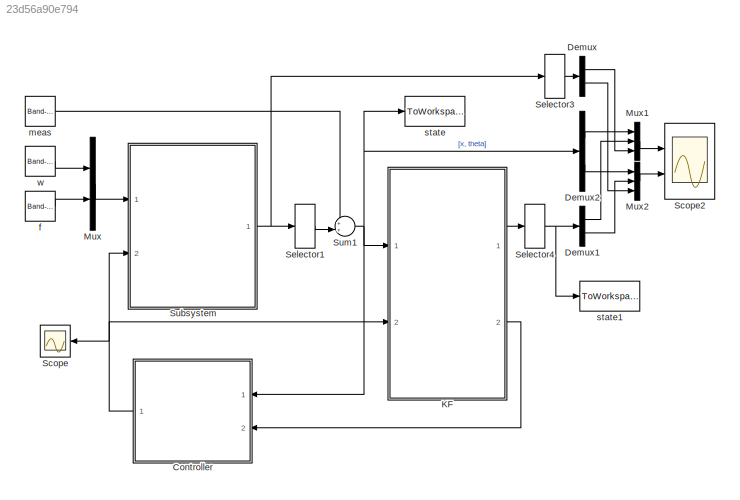
MODEL slx_23d56a90e794
KIND model
CONFIG AbsTol = auto
CONFIG EnableMultiTasking = off
CONFIG FixedStep = Ts
CONFIG MaxStep = auto
CONFIG MinStep = auto
CONFIG RelTol = 1e-3
CONFIG SampleTimeConstraint = Unconstrained
CONFIG Solver = FixedStepAuto
CONFIG SolverName = FixedStepAuto
CONFIG StartTime = 0.0
CONFIG StopTime = duration
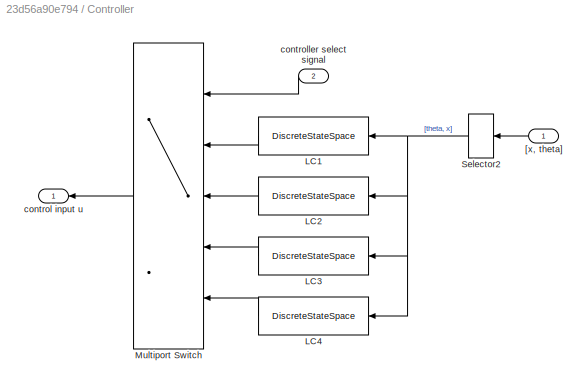
BLOCK [SubSystem] Controller
  Ports = [2, 1]
  RequestExecContextInheritance = off
  Variant = off
BLOCK [DiscreteStateSpace] Controller/LC1
  A = LC1_D.A
  B = LC1_D.B
  C = LC1_D.C
  D = LC1_D.D
  SampleTime = Ts
BLOCK [DiscreteStateSpace] Controller/LC2
  A = LC2_D.A
  B = LC2_D.B
  C = LC2_D.C
  D = LC2_D.D
  SampleTime = Ts
BLOCK [DiscreteStateSpace] Controller/LC3
  A = LC3_D.A
  B = LC3_D.B
  C = LC3_D.C
  D = LC3_D.D
  SampleTime = Ts
BLOCK [DiscreteStateSpace] Controller/LC4
  A = LC4_D.A
  B = LC4_D.B
  C = LC4_D.C
  D = LC4_D.D
  SampleTime = Ts
BLOCK [MultiPortSwitch] Controller/Multiport Switch
  DiagnosticForDefault = None
  InputSameDT = off
  Inputs = 4
  Ports = [5, 1]
  SaturateOnIntegerOverflow = off
BLOCK [Selector] Controller/Selector2
  IndexOptions = Index vector (dialog)
  Indices = [2 1]
  InputPortWidth = 2
  OutputSizes = 1
  Ports = [1, 1]
BLOCK [Inport] Controller/[x, theta]
  IconDisplay = Port number
BLOCK [Outport] Controller/control input u
  IconDisplay = Port number
BLOCK [Inport] Controller/controller select signal
  IconDisplay = Port number
  Port = 2
BLOCK [Demux] Demux
  DisplayOption = bar
  Outputs = 2
  Ports = [1, 2]
BLOCK [Demux] Demux1
  DisplayOption = bar
  Outputs = 2
  Ports = [1, 2]
BLOCK [Demux] Demux2
  DisplayOption = bar
  Outputs = 2
  Ports = [1, 2]
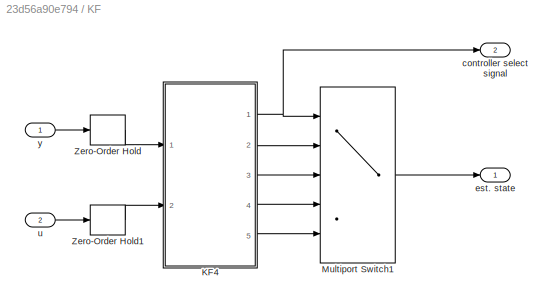
BLOCK [SubSystem] KF
  Ports = [2, 2]
  RequestExecContextInheritance = off
  Variant = off
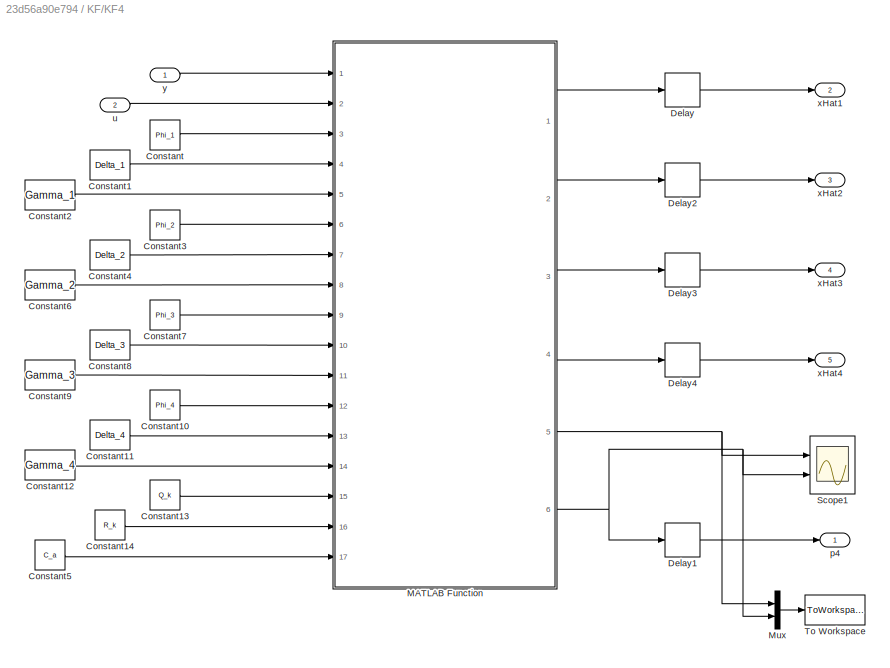
BLOCK [SubSystem] KF/KF4
  Ports = [2, 5]
  RequestExecContextInheritance = off
  Variant = off
BLOCK [Constant] KF/KF4/Constant
  Value = Phi_1
BLOCK [Constant] KF/KF4/Constant1
  Value = Delta_1
BLOCK [Constant] KF/KF4/Constant10
  Value = Phi_4
BLOCK [Constant] KF/KF4/Constant11
  Value = Delta_4
BLOCK [Constant] KF/KF4/Constant12
  Value = Gamma_4
BLOCK [Constant] KF/KF4/Constant13
  Value = Q_k
BLOCK [Constant] KF/KF4/Constant14
  Value = R_k
BLOCK [Constant] KF/KF4/Constant2
  Value = Gamma_1
BLOCK [Constant] KF/KF4/Constant3
  Value = Phi_2
BLOCK [Constant] KF/KF4/Constant4
  Value = Delta_2
BLOCK [Constant] KF/KF4/Constant5
  Value = C_a
BLOCK [Constant] KF/KF4/Constant6
  Value = Gamma_2
BLOCK [Constant] KF/KF4/Constant7
  Value = Phi_3
BLOCK [Constant] KF/KF4/Constant8
  Value = Delta_3
BLOCK [Constant] KF/KF4/Constant9
  Value = Gamma_3
BLOCK [Delay] KF/KF4/Delay
  DelayLength = 1
  InitialCondition = 0
  InputPortMap = u0
  Ports = [1, 1]
BLOCK [Delay] KF/KF4/Delay1
  DelayLength = 1
  InitialCondition = 0
  InputPortMap = u0
  Ports = [1, 1]
BLOCK [Delay] KF/KF4/Delay2
  DelayLength = 1
  InitialCondition = 0
  InputPortMap = u0
  Ports = [1, 1]
BLOCK [Delay] KF/KF4/Delay3
  DelayLength = 1
  InitialCondition = 0
  InputPortMap = u0
  Ports = [1, 1]
BLOCK [Delay] KF/KF4/Delay4
  DelayLength = 1
  InitialCondition = 0
  InputPortMap = u0
  Ports = [1, 1]
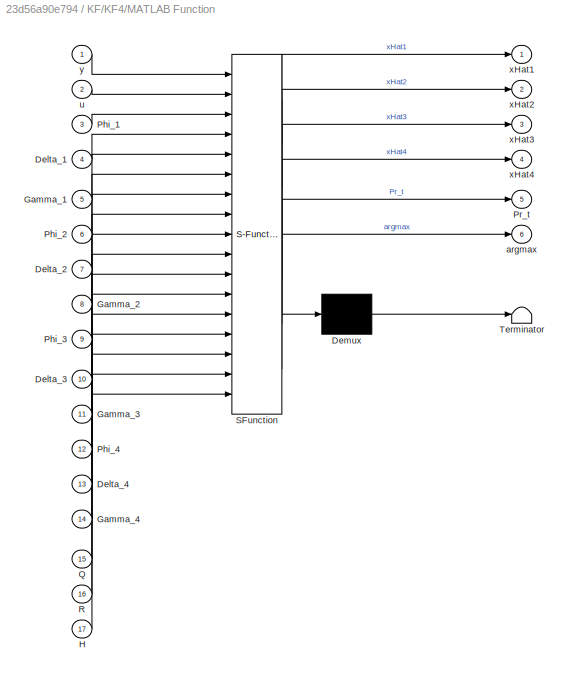
BLOCK [SubSystem] KF/KF4/MATLAB Function
  ErrorFcn = Stateflow.Translate.translate
  PermitHierarchicalResolution = ExplicitOnly
  Ports = [17, 6]
  RequestExecContextInheritance = off
  SFBlockType = MATLAB Function
  TreatAsAtomicUnit = on
  Variant = off
BLOCK [Demux] KF/KF4/MATLAB Function/ Demux 
  Outputs = 1
  Ports = [1, 1]
BLOCK [S-Function] KF/KF4/MATLAB Function/ SFunction 
  EnableBusSupport = on
  FunctionName = sf_sfun
  PortCounts = [17 7]
  Ports = [17, 7]
  SFcnIsStateOwnerBlock = off
  SFunctionDeploymentMode = off
  Tag = Stateflow S-Function pdl_linear_hw4hybrid 4
BLOCK [Terminator] KF/KF4/MATLAB Function/ Terminator 
BLOCK [Inport] KF/KF4/MATLAB Function/Delta_1
  IconDisplay = Port number
  Port = 4
BLOCK [Inport] KF/KF4/MATLAB Function/Delta_2
  IconDisplay = Port number
  Port = 7
BLOCK [Inport] KF/KF4/MATLAB Function/Delta_3
  IconDisplay = Port number
  Port = 10
BLOCK [Inport] KF/KF4/MATLAB Function/Delta_4
  IconDisplay = Port number
  Port = 13
BLOCK [Inport] KF/KF4/MATLAB Function/Gamma_1
  IconDisplay = Port number
  Port = 5
BLOCK [Inport] KF/KF4/MATLAB Function/Gamma_2
  IconDisplay = Port number
  Port = 8
BLOCK [Inport] KF/KF4/MATLAB Function/Gamma_3
  IconDisplay = Port number
  Port = 11
BLOCK [Inport] KF/KF4/MATLAB Function/Gamma_4
  IconDisplay = Port number
  Port = 14
BLOCK [Inport] KF/KF4/MATLAB Function/H
  IconDisplay = Port number
  Port = 17
BLOCK [Inport] KF/KF4/MATLAB Function/Phi_1
  IconDisplay = Port number
  Port = 3
BLOCK [Inport] KF/KF4/MATLAB Function/Phi_2
  IconDisplay = Port number
  Port = 6
BLOCK [Inport] KF/KF4/MATLAB Function/Phi_3
  IconDisplay = Port number
  Port = 9
BLOCK [Inport] KF/KF4/MATLAB Function/Phi_4
  IconDisplay = Port number
  Port = 12
BLOCK [Outport] KF/KF4/MATLAB Function/Pr_t
  IconDisplay = Port number
  Port = 5
BLOCK [Inport] KF/KF4/MATLAB Function/Q
  IconDisplay = Port number
  Port = 15
BLOCK [Inport] KF/KF4/MATLAB Function/R
  IconDisplay = Port number
  Port = 16
BLOCK [Outport] KF/KF4/MATLAB Function/argmax
  IconDisplay = Port number
  Port = 6
BLOCK [Inport] KF/KF4/MATLAB Function/u
  IconDisplay = Port number
  Port = 2
BLOCK [Outport] KF/KF4/MATLAB Function/xHat1
  IconDisplay = Port number
BLOCK [Outport] KF/KF4/MATLAB Function/xHat2
  IconDisplay = Port number
  Port = 2
BLOCK [Outport] KF/KF4/MATLAB Function/xHat3
  IconDisplay = Port number
  Port = 3
BLOCK [Outport] KF/KF4/MATLAB Function/xHat4
  IconDisplay = Port number
  Port = 4
BLOCK [Inport] KF/KF4/MATLAB Function/y
  IconDisplay = Port number
BLOCK [Mux] KF/KF4/Mux
  DisplayOption = bar
  Inputs = 2
  Ports = [2, 1]
BLOCK [Scope] KF/KF4/Scope1
  NumInputPorts = 2
  Ports = [2]
  ScopeSpecificationString = Simulink.scopes.TimeScopeBlockCfg('CurrentConfiguration', extmgr.ConfigurationSet(extmgr.Configuration('Core','General UI',true,'FigureColor',[0 0 0]),extmgr.Configuration('Core','Source UI',true),extmgr.Configuration('Sources','WiredSimulink',true,'DataLoggingVariableName','ScopeData2'),extmgr.Configuration('Visuals','Time Domain',true,'SerializedDisplays',{struct('MinYLimReal','-0.125','MaxYLimR...<+2170ch>
BLOCK [ToWorkspace] KF/KF4/To Workspace
  FixptAsFi = on
  MaxDataPoints = inf
  Ports = [1]
  SampleTime = -1
  Save2DSignal = 3-D array (concatenate along third dimension)
  SaveFormat = Structure With Time
  VariableName = prdata
BLOCK [Outport] KF/KF4/p4
  IconDisplay = Port number
BLOCK [Inport] KF/KF4/u
  IconDisplay = Port number
  Port = 2
BLOCK [Outport] KF/KF4/xHat1
  IconDisplay = Port number
  Port = 2
BLOCK [Outport] KF/KF4/xHat2
  IconDisplay = Port number
  Port = 3
BLOCK [Outport] KF/KF4/xHat3
  IconDisplay = Port number
  Port = 4
BLOCK [Outport] KF/KF4/xHat4 
  IconDisplay = Port number
  Port = 5
BLOCK [Inport] KF/KF4/y
  IconDisplay = Port number
BLOCK [MultiPortSwitch] KF/Multiport Switch1
  DiagnosticForDefault = None
  InputSameDT = off
  Inputs = 4
  Ports = [5, 1]
  SaturateOnIntegerOverflow = off
BLOCK [ZeroOrderHold] KF/Zero-Order Hold
  SampleTime = Ts
BLOCK [ZeroOrderHold] KF/Zero-Order Hold1
  SampleTime = Ts
BLOCK [Outport] KF/controller select signal
  IconDisplay = Port number
  Port = 2
BLOCK [Outport] KF/est. state
  IconDisplay = Port number
BLOCK [Inport] KF/u
  IconDisplay = Port number
  Port = 2
BLOCK [Inport] KF/y
  IconDisplay = Port number
BLOCK [Mux] Mux
  DisplayOption = bar
  Inputs = 2
  Ports = [2, 1]
BLOCK [Mux] Mux1
  DisplayOption = bar
  Inputs = 3
  Ports = [3, 1]
BLOCK [Mux] Mux2
  DisplayOption = bar
  Inputs = 3
  Ports = [3, 1]
BLOCK [Scope] Scope
  NumInputPorts = 1
  Ports = [1]
  ScopeSpecificationString = Simulink.scopes.TimeScopeBlockCfg('CurrentConfiguration', extmgr.ConfigurationSet(extmgr.Configuration('Core','General UI',true),extmgr.Configuration('Core','Source UI',true),extmgr.Configuration('Sources','WiredSimulink',true),extmgr.Configuration('Visuals','Time Domain',true,'SerializedDisplays',{struct('MinYLimReal','-10.87838','MaxYLimReal','12.13787','YLabelReal','','MinYLimMag','0.00000','Ma...<+1361ch>
BLOCK [Scope] Scope2
  NumInputPorts = 2
  Ports = [2]
  ScopeSpecificationString = Simulink.scopes.TimeScopeBlockCfg('CurrentConfiguration', extmgr.ConfigurationSet(extmgr.Configuration('Core','General UI',true),extmgr.Configuration('Core','Source UI',true),extmgr.Configuration('Sources','WiredSimulink',true,'DataLoggingVariableName','ScopeData1'),extmgr.Configuration('Visuals','Time Domain',true,'SerializedDisplays',{struct('MinYLimReal','-0.07615','MaxYLimReal','0.06553','YLab...<+2076ch>
BLOCK [Selector] Selector1
  IndexOptions = Index vector (dialog)
  Indices = [1 2]
  InputPortWidth = 6
  OutputSizes = 1
  Ports = [1, 1]
BLOCK [Selector] Selector3
  IndexOptions = Index vector (dialog)
  Indices = [1 2]
  InputPortWidth = 6
  OutputSizes = 1
  Ports = [1, 1]
BLOCK [Selector] Selector4
  IndexOptions = Index vector (dialog)
  Indices = [1 2]
  InputPortWidth = 6
  OutputSizes = 1
  Ports = [1, 1]
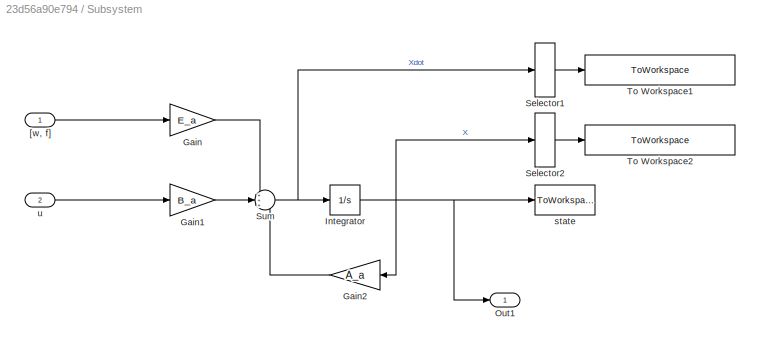
BLOCK [SubSystem] Subsystem
  Ports = [2, 1]
  RequestExecContextInheritance = off
  Variant = off
BLOCK [Gain] Subsystem/Gain
  Gain = E_a
  Multiplication = Matrix(K*u)
  OutDataTypeStr = Inherit: Inherit via internal rule
  ParamDataTypeStr = Inherit: Inherit via internal rule
  SaturateOnIntegerOverflow = off
BLOCK [Gain] Subsystem/Gain1
  Gain = B_a
  Multiplication = Matrix(K*u)
  OutDataTypeStr = Inherit: Inherit via internal rule
  ParamDataTypeStr = Inherit: Inherit via internal rule
  SaturateOnIntegerOverflow = off
BLOCK [Gain] Subsystem/Gain2
  Gain = A_a
  Multiplication = Matrix(K*u)
  OutDataTypeStr = Inherit: Inherit via internal rule
  ParamDataTypeStr = Inherit: Inherit via internal rule
  SaturateOnIntegerOverflow = off
BLOCK [Integrator] Subsystem/Integrator
  InitialCondition = X_0
  Ports = [1, 1]
BLOCK [Outport] Subsystem/Out1
  IconDisplay = Port number
BLOCK [Selector] Subsystem/Selector1
  IndexOptions = Index vector (dialog)
  Indices = [3]
  InputPortWidth = 6
  OutputSizes = 1
  Ports = [1, 1]
BLOCK [Selector] Subsystem/Selector2
  IndexOptions = Index vector (dialog)
  Indices = [3]
  InputPortWidth = 6
  OutputSizes = 1
  Ports = [1, 1]
BLOCK [Sum] Subsystem/Sum
  IconShape = round
  InputSameDT = off
  Inputs = +++
  OutDataTypeStr = Inherit: Inherit via internal rule
  Ports = [3, 1]
  SaturateOnIntegerOverflow = off
BLOCK [ToWorkspace] Subsystem/To Workspace1
  FixptAsFi = on
  MaxDataPoints = inf
  Ports = [1]
  SampleTime = -1
  Save2DSignal = 3-D array (concatenate along third dimension)
  SaveFormat = Structure With Time
  VariableName = linear_acceleration
BLOCK [ToWorkspace] Subsystem/To Workspace2
  FixptAsFi = on
  MaxDataPoints = inf
  Ports = [1]
  SampleTime = -1
  Save2DSignal = 3-D array (concatenate along third dimension)
  SaveFormat = Structure With Time
  VariableName = linear_velocity
BLOCK [Inport] Subsystem/[w, f]
  IconDisplay = Port number
BLOCK [ToWorkspace] Subsystem/state
  MaxDataPoints = inf
  Ports = [1]
  SampleTime = Ts
  SaveFormat = Structure With Time
  VariableName = state_data
BLOCK [Inport] Subsystem/u
  IconDisplay = Port number
  Port = 2
BLOCK [Sum] Sum1
  IconShape = round
  InputSameDT = off
  Inputs = ++|
  OutDataTypeStr = Inherit: Inherit via internal rule
  Ports = [2, 1]
  SaturateOnIntegerOverflow = off
BLOCK [Reference] f  REF=simulink/Sources/Band-Limited
White Noise
  Ports = [0, 1]
  SourceBlock = simulink/Sources/Band-Limited\nWhite Noise
  SourceProductBaseCode = SL
  SourceProductName = Simulink
  SourceType = Band-Limited White Noise.
BLOCK [Reference] meas  REF=simulink/Sources/Band-Limited
White Noise
  Ports = [0, 1]
  SourceBlock = simulink/Sources/Band-Limited\nWhite Noise
  SourceProductBaseCode = SL
  SourceProductName = Simulink
  SourceType = Band-Limited White Noise.
BLOCK [ToWorkspace] state
  MaxDataPoints = inf
  Ports = [1]
  SampleTime = Ts
  SaveFormat = Structure With Time
  VariableName = contmn
BLOCK [ToWorkspace] state1
  MaxDataPoints = inf
  Ports = [1]
  SampleTime = Ts
  SaveFormat = Structure With Time
  VariableName = est
BLOCK [Reference] w  REF=simulink/Sources/Band-Limited
White Noise
  Ports = [0, 1]
  SourceBlock = simulink/Sources/Band-Limited\nWhite Noise
  SourceProductBaseCode = SL
  SourceProductName = Simulink
  SourceType = Band-Limited White Noise.
LINE Controller/LC1:1 -> Controller/Multiport Switch:2
LINE Controller/LC2:1 -> Controller/Multiport Switch:3
LINE Controller/LC3:1 -> Controller/Multiport Switch:4
LINE Controller/LC4:1 -> Controller/Multiport Switch:5
LINE Controller/Multiport Switch:1 -> Controller/control input u:1
NET Controller/Selector2:1 -> Controller/LC1:1, Controller/LC2:1, Controller/LC3:1, Controller/LC4:1
LINE Controller/[x, theta]:1 -> Controller/Selector2:1
LINE Controller/controller select signal:1 -> Controller/Multiport Switch:1
NET Controller:1 -> KF:2, Scope:1, Subsystem:2
LINE Demux1:1 -> Mux1:2
LINE Demux1:2 -> Mux2:2
LINE Demux2:1 -> Mux1:1
LINE Demux2:2 -> Mux2:1
LINE Demux:1 -> Mux1:3
LINE Demux:2 -> Mux2:3
LINE KF/KF4/Constant10:1 -> KF/KF4/MATLAB Function:12
LINE KF/KF4/Constant11:1 -> KF/KF4/MATLAB Function:13
LINE KF/KF4/Constant12:1 -> KF/KF4/MATLAB Function:14
LINE KF/KF4/Constant13:1 -> KF/KF4/MATLAB Function:15
LINE KF/KF4/Constant14:1 -> KF/KF4/MATLAB Function:16
LINE KF/KF4/Constant1:1 -> KF/KF4/MATLAB Function:4
LINE KF/KF4/Constant2:1 -> KF/KF4/MATLAB Function:5
LINE KF/KF4/Constant3:1 -> KF/KF4/MATLAB Function:6
LINE KF/KF4/Constant4:1 -> KF/KF4/MATLAB Function:7
LINE KF/KF4/Constant5:1 -> KF/KF4/MATLAB Function:17
LINE KF/KF4/Constant6:1 -> KF/KF4/MATLAB Function:8
LINE KF/KF4/Constant7:1 -> KF/KF4/MATLAB Function:9
LINE KF/KF4/Constant8:1 -> KF/KF4/MATLAB Function:10
LINE KF/KF4/Constant9:1 -> KF/KF4/MATLAB Function:11
LINE KF/KF4/Constant:1 -> KF/KF4/MATLAB Function:3
LINE KF/KF4/Delay1:1 -> KF/KF4/p4:1
LINE KF/KF4/Delay2:1 -> KF/KF4/xHat2:1
LINE KF/KF4/Delay3:1 -> KF/KF4/xHat3:1
LINE KF/KF4/Delay4:1 -> KF/KF4/xHat4 :1
LINE KF/KF4/Delay:1 -> KF/KF4/xHat1:1
LINE KF/KF4/MATLAB Function:1 -> KF/KF4/Delay:1
LINE KF/KF4/MATLAB Function:2 -> KF/KF4/Delay2:1
LINE KF/KF4/MATLAB Function:3 -> KF/KF4/Delay3:1
LINE KF/KF4/MATLAB Function:4 -> KF/KF4/Delay4:1
NET KF/KF4/MATLAB Function:5 -> KF/KF4/Mux:1, KF/KF4/Scope1:1
NET KF/KF4/MATLAB Function:6 -> KF/KF4/Delay1:1, KF/KF4/Mux:2, KF/KF4/Scope1:2
LINE KF/KF4/Mux:1 -> KF/KF4/To Workspace:1
LINE KF/KF4/u:1 -> KF/KF4/MATLAB Function:2
LINE KF/KF4/y:1 -> KF/KF4/MATLAB Function:1
NET KF/KF4:1 -> KF/Multiport Switch1:1, KF/controller select signal:1
LINE KF/KF4:2 -> KF/Multiport Switch1:2
LINE KF/KF4:3 -> KF/Multiport Switch1:3
LINE KF/KF4:4 -> KF/Multiport Switch1:4
LINE KF/KF4:5 -> KF/Multiport Switch1:5
LINE KF/Multiport Switch1:1 -> KF/est. state:1
LINE KF/Zero-Order Hold1:1 -> KF/KF4:2
LINE KF/Zero-Order Hold:1 -> KF/KF4:1
LINE KF/u:1 -> KF/Zero-Order Hold1:1
LINE KF/y:1 -> KF/Zero-Order Hold:1
LINE KF:1 -> Selector4:1
LINE KF:2 -> Controller:2
LINE Mux1:1 -> Scope2:1
LINE Mux2:1 -> Scope2:2
LINE Mux:1 -> Subsystem:1
LINE Selector1:1 -> Sum1:2
LINE Selector3:1 -> Demux:1
NET Selector4:1 -> Demux1:1, state1:1
LINE Subsystem/Gain1:1 -> Subsystem/Sum:2
LINE Subsystem/Gain2:1 -> Subsystem/Sum:3
LINE Subsystem/Gain:1 -> Subsystem/Sum:1
NET Subsystem/Integrator:1 -> Subsystem/Gain2:1, Subsystem/Out1:1, Subsystem/Selector2:1, Subsystem/state:1
LINE Subsystem/Selector1:1 -> Subsystem/To Workspace1:1
LINE Subsystem/Selector2:1 -> Subsystem/To Workspace2:1
NET Subsystem/Sum:1 -> Subsystem/Integrator:1, Subsystem/Selector1:1
LINE Subsystem/[w, f]:1 -> Subsystem/Gain:1
LINE Subsystem/u:1 -> Subsystem/Gain1:1
NET Subsystem:1 -> Selector1:1, Selector3:1
NET Sum1:1 -> Controller:1, Demux2:1, KF:1, state:1
LINE f:1 -> Mux:2
LINE meas:1 -> Sum1:1
LINE w:1 -> Mux:1
note: NET lines group one-source signal fan-out (src -> all destinations, sorted); 1:1 wires keep LINE
CHART KF/KF4/MATLAB Function states=1 transitions=1
  STATE_LABEL 'eML_blk_kernel()'
  STATE_LABEL 'SCRIPT:\nfunction [xHat1,xHat2,xHat3,xHat4,Pr_t,argmax] = fcn(y,u,Phi_1,Delta_1,Gamma_1,Phi_2,Delta_2,Gamma_2,Phi_3,Delta_3,Gamma_3,Phi_4,Delta_4,Gamma_4,Q,R,H)\n\n%persistent Pbar \npersistent xbar1 Sig1 Pr1 \npersistent xbar2 Sig2 Pr2\npersistent xbar3 Sig3 Pr3\npersistent xbar4 Sig4 Pr4\n\nif isempty(xbar1) xbar1 = zeros(6,1);  end\n\nif isempty(Sig1)  Sig1 = 1e-18*eye(6);  end\n\nif isempty(Pr1)   Pr1 = 0....<+2131ch>'
